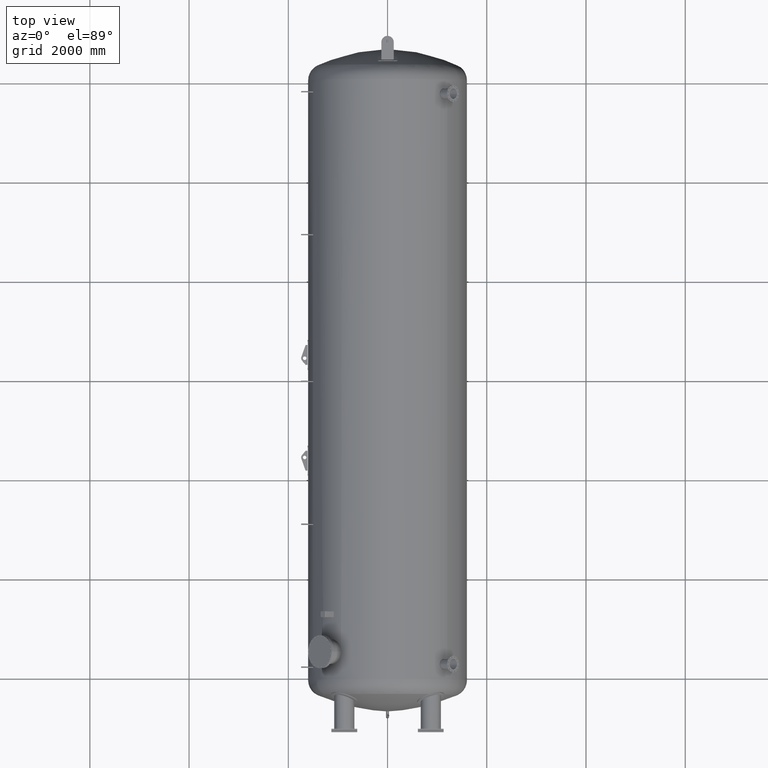
[diagram: clean part render]
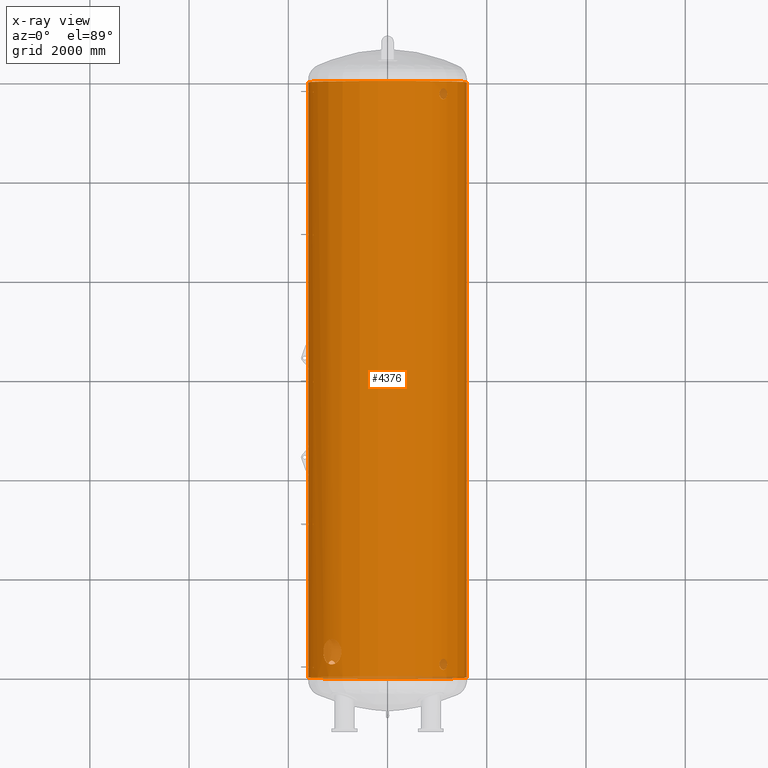
[diagram: x-ray — body ghosted, one internal face saturated and labeled with its STEP entity id]
A machine part, top view, then the same camera in x-ray: the body is ghosted and one INTERNAL B-rep face — a face not visible from any outside direction — is saturated and labeled: STEP entity #4376.
In plain terms, the highlighted cylindrical surface (bore or boss wall) has radius 1592 mm, axis along (0, 1, 0).
Its self-contained STEP definition (entity closure, byte-faithful):
#169=B_SPLINE_CURVE_WITH_KNOTS('',3,(#7213,#7214,#7215,#7216,#7217,#7218,
#7219,#7220,#7221,#7222,#7223,#7224,#7225,#7226,#7227,#7228,#7229,#7230,
#7231,#7232,#7233,#7234,#7235,#7236,#7237,#7238),.UNSPECIFIED.,.F.,.F.,
(4,2,2,2,2,2,2,2,2,2,2,2,4),(0.,0.506646192524776,1.01329238504955,1.51993857748729,
2.02658476992503,2.53323096236277,3.03987715480051,3.54652334732529,4.05316953985007,
4.55981573237485,5.06646192489962,5.57310811733736,6.0797543097751),
 .UNSPECIFIED.);
#170=B_SPLINE_CURVE_WITH_KNOTS('',3,(#7239,#7240,#7241,#7242,#7243,#7244,
#7245,#7246,#7247,#7248),.UNSPECIFIED.,.F.,.F.,(4,2,2,2,4),(6.0797543097751,
6.58640050221284,7.09304669465058,7.59969288717536,8.10633907970013),
 .UNSPECIFIED.);
#173=B_SPLINE_CURVE_WITH_KNOTS('',3,(#7292,#7293,#7294,#7295,#7296,#7297,
#7298,#7299,#7300,#7301,#7302,#7303,#7304,#7305,#7306,#7307,#7308,#7309,
#7310,#7311,#7312,#7313,#7314,#7315,#7316,#7317),.UNSPECIFIED.,.F.,.F.,
(4,2,2,2,2,2,2,2,2,2,2,2,4),(0.,0.506646192524776,1.01329238504955,1.51993857748729,
2.02658476992503,2.53323096236277,3.03987715480051,3.54652334732529,4.05316953985007,
4.55981573237485,5.06646192489962,5.57310811733736,6.0797543097751),
 .UNSPECIFIED.);
#174=B_SPLINE_CURVE_WITH_KNOTS('',3,(#7318,#7319,#7320,#7321,#7322,#7323,
#7324,#7325,#7326,#7327),.UNSPECIFIED.,.F.,.F.,(4,2,2,2,4),(6.0797543097751,
6.58640050221284,7.09304669465058,7.59969288717536,8.10633907970013),
 .UNSPECIFIED.);
#177=B_SPLINE_CURVE_WITH_KNOTS('',3,(#7371,#7372,#7373,#7374,#7375,#7376,
#7377,#7378,#7379,#7380,#7381,#7382,#7383,#7384,#7385,#7386,#7387,#7388,
#7389,#7390,#7391,#7392,#7393,#7394,#7395,#7396),.UNSPECIFIED.,.F.,.F.,
(4,2,2,2,2,2,2,2,2,2,2,2,4),(0.,0.506646192524776,1.01329238504955,1.51993857748729,
2.02658476992503,2.53323096236277,3.03987715480051,3.54652334732529,4.05316953985007,
4.55981573237485,5.06646192489962,5.57310811733736,6.0797543097751),
 .UNSPECIFIED.);
#178=B_SPLINE_CURVE_WITH_KNOTS('',3,(#7397,#7398,#7399,#7400,#7401,#7402,
#7403,#7404,#7405,#7406),.UNSPECIFIED.,.F.,.F.,(4,2,2,2,4),(6.0797543097751,
6.58640050221284,7.09304669465058,7.59969288717536,8.10633907970013),
 .UNSPECIFIED.);
#181=B_SPLINE_CURVE_WITH_KNOTS('',3,(#7450,#7451,#7452,#7453,#7454,#7455,
#7456,#7457,#7458,#7459,#7460,#7461,#7462,#7463,#7464,#7465,#7466,#7467,
#7468,#7469,#7470,#7471,#7472,#7473,#7474,#7475),.UNSPECIFIED.,.F.,.F.,
(4,2,2,2,2,2,2,2,2,2,2,2,4),(0.,0.506646192524776,1.01329238504955,1.51993857748729,
2.02658476992503,2.53323096236277,3.03987715480051,3.54652334732529,4.05316953985007,
4.55981573237485,5.06646192489962,5.57310811733736,6.0797543097751),
 .UNSPECIFIED.);
#182=B_SPLINE_CURVE_WITH_KNOTS('',3,(#7476,#7477,#7478,#7479,#7480,#7481,
#7482,#7483,#7484,#7485),.UNSPECIFIED.,.F.,.F.,(4,2,2,2,4),(6.0797543097751,
6.58640050221284,7.09304669465058,7.59969288717536,8.10633907970013),
 .UNSPECIFIED.);
#185=B_SPLINE_CURVE_WITH_KNOTS('',3,(#7529,#7530,#7531,#7532,#7533,#7534,
#7535,#7536,#7537,#7538,#7539,#7540,#7541,#7542,#7543,#7544,#7545,#7546,
#7547,#7548,#7549,#7550,#7551,#7552,#7553,#7554),.UNSPECIFIED.,.F.,.F.,
(4,2,2,2,2,2,2,2,2,2,2,2,4),(0.,0.506646192524776,1.01329238504955,1.51993857748729,
2.02658476992503,2.53323096236277,3.03987715480051,3.54652334732529,4.05316953985007,
4.55981573237485,5.06646192489962,5.57310811733736,6.0797543097751),
 .UNSPECIFIED.);
#186=B_SPLINE_CURVE_WITH_KNOTS('',3,(#7555,#7556,#7557,#7558,#7559,#7560,
#7561,#7562,#7563,#7564),.UNSPECIFIED.,.F.,.F.,(4,2,2,2,4),(6.0797543097751,
6.58640050221284,7.09304669465058,7.59969288717536,8.10633907970013),
 .UNSPECIFIED.);
#189=B_SPLINE_CURVE_WITH_KNOTS('',3,(#7624,#7625,#7626,#7627,#7628,#7629,
#7630,#7631,#7632,#7633,#7634,#7635,#7636,#7637,#7638,#7639,#7640,#7641,
#7642,#7643,#7644,#7645,#7646,#7647,#7648,#7649,#7650,#7651,#7652,#7653,
#7654,#7655,#7656,#7657,#7658,#7659,#7660,#7661,#7662,#7663,#7664,#7665,
#7666,#7667,#7668,#7669,#7670,#7671,#7672,#7673),.UNSPECIFIED.,.F.,.F.,
(4,2,2,2,2,2,2,2,2,2,2,2,2,2,2,2,2,2,2,2,2,2,2,2,4),(0.,2.06400194110335,
4.12800388220669,6.19200582331004,8.25600776441339,10.3200081380386,12.3840085116637,
14.4480088852889,16.5120092589141,18.5760096325392,20.6400100061644,22.7040103797896,
24.7680107534147,26.8320126945181,28.8960146356214,30.9600165767248,33.0240185178281,
35.0880204589315,37.1520224000348,39.2160243411382,41.2800262822415,43.3440266558667,
45.4080270294919,47.472027403117,49.5360277767422),.UNSPECIFIED.);
#190=B_SPLINE_CURVE_WITH_KNOTS('',3,(#7674,#7675,#7676,#7677,#7678,#7679,
#7680,#7681,#7682,#7683,#7684,#7685,#7686,#7687,#7688,#7689,#7690,#7691),
 .UNSPECIFIED.,.F.,.F.,(4,2,2,2,2,2,2,2,4),(49.5360277767422,51.6000281503674,
53.6640285239925,55.7280288976177,57.7920292712429,59.8560312123462,61.9200331534496,
63.9840350945529,66.0480370356563),.UNSPECIFIED.);
#193=B_SPLINE_CURVE_WITH_KNOTS('',3,(#7767,#7768,#7769,#7770,#7771,#7772,
#7773,#7774,#7775,#7776,#7777,#7778,#7779,#7780,#7781,#7782,#7783,#7784,
#7785,#7786,#7787,#7788,#7789,#7790,#7791,#7792,#7793,#7794,#7795,#7796,
#7797,#7798,#7799,#7800,#7801,#7802,#7803,#7804,#7805,#7806,#7807,#7808,
#7809,#7810,#7811,#7812,#7813,#7814,#7815,#7816),.UNSPECIFIED.,.F.,.F.,
(4,2,2,2,2,2,2,2,2,2,2,2,2,2,2,2,2,2,2,2,2,2,2,2,4),(0.,2.06400194110338,
4.12800388220676,6.19200582331013,8.25600776441351,10.3200081380387,12.3840085116638,
14.448008885289,16.5120092589142,18.5760096325393,20.6400100061645,22.7040103797897,
24.7680107534148,26.8320126945182,28.8960146356216,30.9600165767249,33.0240185178283,
35.0880204589317,37.1520224000351,39.2160243411385,41.2800262822418,43.344026655867,
45.4080270294922,47.4720274031173,49.5360277767425),.UNSPECIFIED.);
#194=B_SPLINE_CURVE_WITH_KNOTS('',3,(#7817,#7818,#7819,#7820,#7821,#7822,
#7823,#7824,#7825,#7826,#7827,#7828,#7829,#7830,#7831,#7832,#7833,#7834),
 .UNSPECIFIED.,.F.,.F.,(4,2,2,2,2,2,2,2,4),(49.5360277767425,51.6000281503676,
53.6640285239928,55.728028897618,57.7920292712431,59.8560312123465,61.9200331534499,
63.9840350945533,66.0480370356566),.UNSPECIFIED.);
#197=B_SPLINE_CURVE_WITH_KNOTS('',3,(#7910,#7911,#7912,#7913,#7914,#7915,
#7916,#7917,#7918,#7919,#7920,#7921,#7922,#7923,#7924,#7925,#7926,#7927,
#7928,#7929,#7930,#7931,#7932,#7933,#7934,#7935,#7936,#7937,#7938,#7939,
#7940,#7941,#7942,#7943,#7944,#7945,#7946,#7947,#7948,#7949,#7950,#7951,
#7952,#7953,#7954,#7955,#7956,#7957,#7958,#7959),.UNSPECIFIED.,.F.,.F.,
(4,2,2,2,2,2,2,2,2,2,2,2,2,2,2,2,2,2,2,2,2,2,2,2,4),(0.,2.06400194110335,
4.12800388220669,6.19200582331004,8.25600776441339,10.3200081380386,12.3840085116637,
14.4480088852889,16.5120092589141,18.5760096325392,20.6400100061644,22.7040103797896,
24.7680107534147,26.8320126945181,28.8960146356214,30.9600165767248,33.0240185178281,
35.0880204589315,37.1520224000348,39.2160243411382,41.2800262822415,43.3440266558667,
45.4080270294919,47.472027403117,49.5360277767422),.UNSPECIFIED.);
#198=B_SPLINE_CURVE_WITH_KNOTS('',3,(#7960,#7961,#7962,#7963,#7964,#7965,
#7966,#7967,#7968,#7969,#7970,#7971,#7972,#7973,#7974,#7975,#7976,#7977),
 .UNSPECIFIED.,.F.,.F.,(4,2,2,2,2,2,2,2,4),(49.5360277767422,51.6000281503674,
53.6640285239925,55.7280288976177,57.7920292712429,59.8560312123462,61.9200331534496,
63.9840350945529,66.0480370356563),.UNSPECIFIED.);
#201=B_SPLINE_CURVE_WITH_KNOTS('',3,(#8053,#8054,#8055,#8056,#8057,#8058,
#8059,#8060,#8061,#8062,#8063,#8064,#8065,#8066,#8067,#8068,#8069,#8070,
#8071,#8072,#8073,#8074,#8075,#8076,#8077,#8078,#8079,#8080,#8081,#8082,
#8083,#8084,#8085,#8086,#8087,#8088,#8089,#8090,#8091,#8092,#8093,#8094,
#8095,#8096,#8097,#8098,#8099,#8100,#8101,#8102),.UNSPECIFIED.,.F.,.F.,
(4,2,2,2,2,2,2,2,2,2,2,2,2,2,2,2,2,2,2,2,2,2,2,2,4),(0.,2.06400194110338,
4.12800388220676,6.19200582331013,8.25600776441351,10.3200081380387,12.3840085116638,
14.448008885289,16.5120092589142,18.5760096325393,20.6400100061645,22.7040103797897,
24.7680107534148,26.8320126945182,28.8960146356216,30.9600165767249,33.0240185178283,
35.0880204589317,37.1520224000351,39.2160243411385,41.2800262822418,43.344026655867,
45.4080270294922,47.4720274031173,49.5360277767425),.UNSPECIFIED.);
#202=B_SPLINE_CURVE_WITH_KNOTS('',3,(#8103,#8104,#8105,#8106,#8107,#8108,
#8109,#8110,#8111,#8112,#8113,#8114,#8115,#8116,#8117,#8118,#8119,#8120),
 .UNSPECIFIED.,.F.,.F.,(4,2,2,2,2,2,2,2,4),(49.5360277767425,51.6000281503676,
53.6640285239928,55.728028897618,57.7920292712431,59.8560312123465,61.9200331534499,
63.9840350945533,66.0480370356566),.UNSPECIFIED.);
#205=B_SPLINE_CURVE_WITH_KNOTS('',3,(#8228,#8229,#8230,#8231,#8232,#8233,
#8234,#8235,#8236,#8237,#8238,#8239,#8240,#8241,#8242,#8243,#8244,#8245,
#8246,#8247,#8248,#8249,#8250,#8251,#8252,#8253,#8254,#8255,#8256,#8257,
#8258,#8259,#8260,#8261,#8262,#8263,#8264,#8265,#8266,#8267,#8268,#8269,
#8270,#8271,#8272,#8273,#8274,#8275,#8276,#8277,#8278,#8279,#8280,#8281,
#8282,#8283,#8284,#8285,#8286,#8287,#8288,#8289,#8290,#8291,#8292,#8293,
#8294,#8295,#8296,#8297,#8298,#8299,#8300,#8301,#8302,#8303,#8304,#8305,
#8306,#8307,#8308,#8309,#8310,#8311,#8312,#8313,#8314,#8315,#8316,#8317,
#8318,#8319,#8320,#8321,#8322,#8323,#8324,#8325),.UNSPECIFIED.,.F.,.F.,
(4,2,2,2,2,2,2,2,2,2,2,2,2,2,2,2,2,2,2,2,2,2,2,2,2,2,2,2,2,2,2,2,2,2,2,
2,2,2,2,2,2,2,2,2,2,2,2,2,4),(0.,2.39639255874289,4.79278511748579,7.18917767622868,
9.58557023497158,11.9819627937145,14.3783553524574,16.7747479112003,19.1711404699432,
21.567479396911,23.9638183238789,26.3601572508467,28.7564961778146,31.1528351047824,
33.5491740317503,35.9455129587181,38.341851885686,40.7381908126538,43.1345297396217,
45.5308686665895,47.9272075935574,50.3235465205252,52.7198854474931,55.1162243744609,
57.5125633014288,59.9089558601717,62.3053484189146,64.7017409776575,67.0981335364004,
69.4945260951432,71.8909186538861,74.287311212629,76.6837037713719,79.0800963301148,
81.4764888888577,83.8728814476006,86.2692740063435,88.6656665650864,91.0620591238293,
93.4584516825722,95.8548442413151,98.2511831682829,100.647522095251,103.043861022219,
105.440199949186,107.836538876154,110.232877803122,112.62921673009,115.025555657058),
 .UNSPECIFIED.);
#206=B_SPLINE_CURVE_WITH_KNOTS('',3,(#8326,#8327,#8328,#8329,#8330,#8331,
#8332,#8333,#8334,#8335,#8336,#8337,#8338,#8339,#8340,#8341,#8342,#8343,
#8344,#8345,#8346,#8347,#8348,#8349,#8350,#8351,#8352,#8353,#8354,#8355,
#8356,#8357,#8358,#8359),.UNSPECIFIED.,.F.,.F.,(4,2,2,2,2,2,2,2,2,2,2,2,
2,2,2,2,4),(115.025555657058,117.421894584026,119.818233510994,122.214572437961,
124.610911364929,127.007250291897,129.403589218865,131.799928145833,134.196267072801,
136.592659631544,138.989052190286,141.385444749029,143.781837307772,146.178229866515,
148.574622425258,150.971014984001,153.367407542744),.UNSPECIFIED.);
#401=FACE_BOUND('',#865,.T.);
#402=FACE_BOUND('',#866,.T.);
#403=FACE_BOUND('',#867,.T.);
#404=FACE_BOUND('',#868,.T.);
#405=FACE_BOUND('',#869,.T.);
#406=FACE_BOUND('',#870,.T.);
#407=FACE_BOUND('',#871,.T.);
#408=FACE_BOUND('',#872,.T.);
#409=FACE_BOUND('',#873,.T.);
#410=FACE_BOUND('',#874,.T.);
#622=FACE_OUTER_BOUND('',#864,.T.);
#864=EDGE_LOOP('',(#3119,#3120,#3121,#3122,#3123,#3124));
#865=EDGE_LOOP('',(#3125,#3126));
#866=EDGE_LOOP('',(#3127,#3128));
#867=EDGE_LOOP('',(#3129,#3130));
#868=EDGE_LOOP('',(#3131,#3132));
#869=EDGE_LOOP('',(#3133,#3134));
#870=EDGE_LOOP('',(#3135,#3136));
#871=EDGE_LOOP('',(#3137,#3138));
#872=EDGE_LOOP('',(#3139,#3140));
#873=EDGE_LOOP('',(#3141,#3142));
#874=EDGE_LOOP('',(#3143,#3144));
#1265=LINE('',#8432,#1490);
#1490=VECTOR('',#5834,1592.);
#1735=CIRCLE('',#5155,1592.);
#1736=CIRCLE('',#5156,1592.);
#1737=CIRCLE('',#5157,1592.);
#1738=CIRCLE('',#5158,1592.);
#2024=VERTEX_POINT('',#7210);
#2025=VERTEX_POINT('',#7212);
#2028=VERTEX_POINT('',#7289);
#2029=VERTEX_POINT('',#7291);
#2032=VERTEX_POINT('',#7368);
#2033=VERTEX_POINT('',#7370);
#2036=VERTEX_POINT('',#7447);
#2037=VERTEX_POINT('',#7449);
#2040=VERTEX_POINT('',#7526);
#2041=VERTEX_POINT('',#7528);
#2044=VERTEX_POINT('',#7621);
#2045=VERTEX_POINT('',#7623);
#2048=VERTEX_POINT('',#7764);
#2049=VERTEX_POINT('',#7766);
#2052=VERTEX_POINT('',#7907);
#2053=VERTEX_POINT('',#7909);
#2056=VERTEX_POINT('',#8050);
#2057=VERTEX_POINT('',#8052);
#2060=VERTEX_POINT('',#8225);
#2061=VERTEX_POINT('',#8227);
#2062=VERTEX_POINT('',#8428);
#2063=VERTEX_POINT('',#8429);
#2064=VERTEX_POINT('',#8431);
#2065=VERTEX_POINT('',#8433);
#2437=EDGE_CURVE('',#2025,#2024,#169,.T.);
#2438=EDGE_CURVE('',#2024,#2025,#170,.T.);
#2442=EDGE_CURVE('',#2029,#2028,#173,.T.);
#2443=EDGE_CURVE('',#2028,#2029,#174,.T.);
#2447=EDGE_CURVE('',#2033,#2032,#177,.T.);
#2448=EDGE_CURVE('',#2032,#2033,#178,.T.);
#2452=EDGE_CURVE('',#2037,#2036,#181,.T.);
#2453=EDGE_CURVE('',#2036,#2037,#182,.T.);
#2457=EDGE_CURVE('',#2041,#2040,#185,.T.);
#2458=EDGE_CURVE('',#2040,#2041,#186,.T.);
#2462=EDGE_CURVE('',#2045,#2044,#189,.T.);
#2463=EDGE_CURVE('',#2044,#2045,#190,.T.);
#2467=EDGE_CURVE('',#2049,#2048,#193,.T.);
#2468=EDGE_CURVE('',#2048,#2049,#194,.T.);
#2472=EDGE_CURVE('',#2053,#2052,#197,.T.);
#2473=EDGE_CURVE('',#2052,#2053,#198,.T.);
#2477=EDGE_CURVE('',#2057,#2056,#201,.T.);
#2478=EDGE_CURVE('',#2056,#2057,#202,.T.);
#2482=EDGE_CURVE('',#2061,#2060,#205,.T.);
#2483=EDGE_CURVE('',#2060,#2061,#206,.T.);
#2485=EDGE_CURVE('',#2062,#2063,#1735,.T.);
#2486=EDGE_CURVE('',#2063,#2064,#1265,.T.);
#2487=EDGE_CURVE('',#2065,#2064,#1736,.T.);
#2488=EDGE_CURVE('',#2064,#2065,#1737,.T.);
#2489=EDGE_CURVE('',#2063,#2062,#1738,.T.);
#3119=ORIENTED_EDGE('',*,*,#2485,.T.);
#3120=ORIENTED_EDGE('',*,*,#2486,.T.);
#3121=ORIENTED_EDGE('',*,*,#2487,.F.);
#3122=ORIENTED_EDGE('',*,*,#2488,.F.);
#3123=ORIENTED_EDGE('',*,*,#2486,.F.);
#3124=ORIENTED_EDGE('',*,*,#2489,.T.);
#3125=ORIENTED_EDGE('',*,*,#2437,.T.);
#3126=ORIENTED_EDGE('',*,*,#2438,.T.);
#3127=ORIENTED_EDGE('',*,*,#2442,.T.);
#3128=ORIENTED_EDGE('',*,*,#2443,.T.);
#3129=ORIENTED_EDGE('',*,*,#2447,.T.);
#3130=ORIENTED_EDGE('',*,*,#2448,.T.);
#3131=ORIENTED_EDGE('',*,*,#2452,.T.);
#3132=ORIENTED_EDGE('',*,*,#2453,.T.);
#3133=ORIENTED_EDGE('',*,*,#2457,.T.);
#3134=ORIENTED_EDGE('',*,*,#2458,.T.);
#3135=ORIENTED_EDGE('',*,*,#2462,.T.);
#3136=ORIENTED_EDGE('',*,*,#2463,.T.);
#3137=ORIENTED_EDGE('',*,*,#2467,.T.);
#3138=ORIENTED_EDGE('',*,*,#2468,.T.);
#3139=ORIENTED_EDGE('',*,*,#2472,.T.);
#3140=ORIENTED_EDGE('',*,*,#2473,.T.);
#3141=ORIENTED_EDGE('',*,*,#2477,.T.);
#3142=ORIENTED_EDGE('',*,*,#2478,.T.);
#3143=ORIENTED_EDGE('',*,*,#2482,.T.);
#3144=ORIENTED_EDGE('',*,*,#2483,.T.);
#4155=CYLINDRICAL_SURFACE('',#5154,1592.);
#4376=ADVANCED_FACE('',(#622,#401,#402,#403,#404,#405,#406,#407,#408,#409,
#410),#4155,.F.);
#5154=AXIS2_PLACEMENT_3D('',#8427,#5830,#5831);
#5155=AXIS2_PLACEMENT_3D('',#8430,#5832,#5833);
#5156=AXIS2_PLACEMENT_3D('',#8434,#5835,#5836);
#5157=AXIS2_PLACEMENT_3D('',#8435,#5837,#5838);
#5158=AXIS2_PLACEMENT_3D('',#8436,#5839,#5840);
#5830=DIRECTION('center_axis',(0.,1.,0.));
#5831=DIRECTION('ref_axis',(-1.,0.,0.));
#5832=DIRECTION('center_axis',(0.,1.,0.));
#5833=DIRECTION('ref_axis',(1.,0.,0.));
#5834=DIRECTION('',(0.,-1.,0.));
#5835=DIRECTION('center_axis',(0.,1.,0.));
#5836=DIRECTION('ref_axis',(1.,0.,0.));
#5837=DIRECTION('center_axis',(0.,1.,0.));
#5838=DIRECTION('ref_axis',(1.,0.,0.));
#5839=DIRECTION('center_axis',(0.,1.,0.));
#5840=DIRECTION('ref_axis',(1.,0.,0.));
#7210=CARTESIAN_POINT('',(-1495.99065229117,8933.45,544.496068174465));
#7212=CARTESIAN_POINT('',(-1500.53743258516,8920.,531.837769823423));
#7213=CARTESIAN_POINT('Ctrl Pts',(-1500.53743258516,8920.,531.837769823423));
#7214=CARTESIAN_POINT('Ctrl Pts',(-1500.53743258516,8918.31117935825,531.837769823423));
#7215=CARTESIAN_POINT('Ctrl Pts',(-1500.42478141197,8916.50979643767,532.155941785707));
#7216=CARTESIAN_POINT('Ctrl Pts',(-1499.96538433643,8913.19599693097,533.449451068663));
#7217=CARTESIAN_POINT('Ctrl Pts',(-1499.61849423164,8911.6835796662,534.424735431897));
#7218=CARTESIAN_POINT('Ctrl Pts',(-1498.81504430862,8909.29524792009,536.673913132699));
#7219=CARTESIAN_POINT('Ctrl Pts',(-1498.30490570907,8908.26013699761,538.097718703243));
#7220=CARTESIAN_POINT('Ctrl Pts',(-1497.18158731658,8906.88751281508,541.215336022276));
#7221=CARTESIAN_POINT('Ctrl Pts',(-1496.56826296901,8906.55,542.909095879854));
#7222=CARTESIAN_POINT('Ctrl Pts',(-1495.41304161332,8906.55,546.083040469075));
#7223=CARTESIAN_POINT('Ctrl Pts',(-1494.79414747137,8906.88751281508,547.774773087286));
#7224=CARTESIAN_POINT('Ctrl Pts',(-1493.65069349937,8908.26013699761,550.885061654728));
#7225=CARTESIAN_POINT('Ctrl Pts',(-1493.12627775944,8909.29524792009,552.303670771144));
#7226=CARTESIAN_POINT('Ctrl Pts',(-1492.29601255023,8911.6835796662,554.543088505949));
#7227=CARTESIAN_POINT('Ctrl Pts',(-1491.93484508276,8913.19599693097,555.513176334144));
#7228=CARTESIAN_POINT('Ctrl Pts',(-1491.45531191957,8916.50979643767,556.799356680562));
#7229=CARTESIAN_POINT('Ctrl Pts',(-1491.33709072969,8918.31117935825,557.115501322564));
#7230=CARTESIAN_POINT('Ctrl Pts',(-1491.33709072969,8921.68882064175,557.115501322564));
#7231=CARTESIAN_POINT('Ctrl Pts',(-1491.45531191957,8923.49020356233,556.799356680562));
#7232=CARTESIAN_POINT('Ctrl Pts',(-1491.93484508276,8926.80400306903,555.513176334144));
#7233=CARTESIAN_POINT('Ctrl Pts',(-1492.29601255023,8928.3164203338,554.543088505949));
#7234=CARTESIAN_POINT('Ctrl Pts',(-1493.12627775944,8930.70475207991,552.303670771144));
#7235=CARTESIAN_POINT('Ctrl Pts',(-1493.65069349937,8931.73986300239,550.885061654728));
#7236=CARTESIAN_POINT('Ctrl Pts',(-1494.79414747137,8933.11248718492,547.774773087286));
#7237=CARTESIAN_POINT('Ctrl Pts',(-1495.41304161332,8933.45,546.083040469075));
#7238=CARTESIAN_POINT('Ctrl Pts',(-1495.99065229117,8933.45,544.496068174465));
#7239=CARTESIAN_POINT('Ctrl Pts',(-1495.99065229117,8933.45,544.496068174465));
#7240=CARTESIAN_POINT('Ctrl Pts',(-1496.56826296901,8933.45,542.909095879855));
#7241=CARTESIAN_POINT('Ctrl Pts',(-1497.18158731658,8933.11248718492,541.215336022276));
#7242=CARTESIAN_POINT('Ctrl Pts',(-1498.30490570907,8931.73986300239,538.097718703243));
#7243=CARTESIAN_POINT('Ctrl Pts',(-1498.81504430862,8930.70475207991,536.673913132699));
#7244=CARTESIAN_POINT('Ctrl Pts',(-1499.61849423164,8928.3164203338,534.424735431897));
#7245=CARTESIAN_POINT('Ctrl Pts',(-1499.96538433643,8926.80400306903,533.449451068663));
#7246=CARTESIAN_POINT('Ctrl Pts',(-1500.42478141197,8923.49020356233,532.155941785707));
#7247=CARTESIAN_POINT('Ctrl Pts',(-1500.53743258516,8921.68882064175,531.837769823423));
#7248=CARTESIAN_POINT('Ctrl Pts',(-1500.53743258516,8920.,531.837769823423));
#7289=CARTESIAN_POINT('',(-1495.99065229117,5973.45,544.496068174465));
#7291=CARTESIAN_POINT('',(-1500.53743258516,5960.,531.837769823423));
#7292=CARTESIAN_POINT('Ctrl Pts',(-1500.53743258516,5960.,531.837769823423));
#7293=CARTESIAN_POINT('Ctrl Pts',(-1500.53743258516,5958.31117935825,531.837769823423));
#7294=CARTESIAN_POINT('Ctrl Pts',(-1500.42478141197,5956.50979643767,532.155941785707));
#7295=CARTESIAN_POINT('Ctrl Pts',(-1499.96538433643,5953.19599693097,533.449451068663));
#7296=CARTESIAN_POINT('Ctrl Pts',(-1499.61849423164,5951.6835796662,534.424735431897));
#7297=CARTESIAN_POINT('Ctrl Pts',(-1498.81504430862,5949.29524792009,536.673913132699));
#7298=CARTESIAN_POINT('Ctrl Pts',(-1498.30490570907,5948.26013699761,538.097718703243));
#7299=CARTESIAN_POINT('Ctrl Pts',(-1497.18158731658,5946.88751281508,541.215336022276));
#7300=CARTESIAN_POINT('Ctrl Pts',(-1496.56826296901,5946.55,542.909095879854));
#7301=CARTESIAN_POINT('Ctrl Pts',(-1495.41304161332,5946.55,546.083040469075));
#7302=CARTESIAN_POINT('Ctrl Pts',(-1494.79414747137,5946.88751281508,547.774773087286));
#7303=CARTESIAN_POINT('Ctrl Pts',(-1493.65069349937,5948.26013699761,550.885061654728));
#7304=CARTESIAN_POINT('Ctrl Pts',(-1493.12627775944,5949.29524792009,552.303670771144));
#7305=CARTESIAN_POINT('Ctrl Pts',(-1492.29601255023,5951.6835796662,554.543088505949));
#7306=CARTESIAN_POINT('Ctrl Pts',(-1491.93484508276,5953.19599693097,555.513176334144));
#7307=CARTESIAN_POINT('Ctrl Pts',(-1491.45531191957,5956.50979643767,556.799356680562));
#7308=CARTESIAN_POINT('Ctrl Pts',(-1491.33709072969,5958.31117935825,557.115501322564));
#7309=CARTESIAN_POINT('Ctrl Pts',(-1491.33709072969,5961.68882064175,557.115501322564));
#7310=CARTESIAN_POINT('Ctrl Pts',(-1491.45531191957,5963.49020356233,556.799356680562));
#7311=CARTESIAN_POINT('Ctrl Pts',(-1491.93484508276,5966.80400306903,555.513176334144));
#7312=CARTESIAN_POINT('Ctrl Pts',(-1492.29601255023,5968.3164203338,554.543088505949));
#7313=CARTESIAN_POINT('Ctrl Pts',(-1493.12627775944,5970.70475207991,552.303670771144));
#7314=CARTESIAN_POINT('Ctrl Pts',(-1493.65069349937,5971.73986300239,550.885061654728));
#7315=CARTESIAN_POINT('Ctrl Pts',(-1494.79414747137,5973.11248718492,547.774773087286));
#7316=CARTESIAN_POINT('Ctrl Pts',(-1495.41304161332,5973.45,546.083040469075));
#7317=CARTESIAN_POINT('Ctrl Pts',(-1495.99065229117,5973.45,544.496068174465));
#7318=CARTESIAN_POINT('Ctrl Pts',(-1495.99065229117,5973.45,544.496068174465));
#7319=CARTESIAN_POINT('Ctrl Pts',(-1496.56826296901,5973.45,542.909095879854));
#7320=CARTESIAN_POINT('Ctrl Pts',(-1497.18158731658,5973.11248718492,541.215336022276));
#7321=CARTESIAN_POINT('Ctrl Pts',(-1498.30490570907,5971.73986300239,538.097718703243));
#7322=CARTESIAN_POINT('Ctrl Pts',(-1498.81504430862,5970.70475207991,536.673913132699));
#7323=CARTESIAN_POINT('Ctrl Pts',(-1499.61849423164,5968.3164203338,534.424735431897));
#7324=CARTESIAN_POINT('Ctrl Pts',(-1499.96538433643,5966.80400306903,533.449451068663));
#7325=CARTESIAN_POINT('Ctrl Pts',(-1500.42478141197,5963.49020356233,532.155941785707));
#7326=CARTESIAN_POINT('Ctrl Pts',(-1500.53743258515,5961.68882064175,531.837769823424));
#7327=CARTESIAN_POINT('Ctrl Pts',(-1500.53743258515,5960.,531.837769823424));
#7368=CARTESIAN_POINT('',(-1495.99065229117,3093.45,544.496068174465));
#7370=CARTESIAN_POINT('',(-1500.53743258516,3080.,531.837769823423));
#7371=CARTESIAN_POINT('Ctrl Pts',(-1500.53743258516,3080.,531.837769823423));
#7372=CARTESIAN_POINT('Ctrl Pts',(-1500.53743258516,3078.31117935825,531.837769823423));
#7373=CARTESIAN_POINT('Ctrl Pts',(-1500.42478141197,3076.50979643767,532.155941785707));
#7374=CARTESIAN_POINT('Ctrl Pts',(-1499.96538433643,3073.19599693097,533.449451068663));
#7375=CARTESIAN_POINT('Ctrl Pts',(-1499.61849423164,3071.6835796662,534.424735431897));
#7376=CARTESIAN_POINT('Ctrl Pts',(-1498.81504430862,3069.29524792009,536.673913132699));
#7377=CARTESIAN_POINT('Ctrl Pts',(-1498.30490570907,3068.26013699761,538.097718703243));
#7378=CARTESIAN_POINT('Ctrl Pts',(-1497.18158731658,3066.88751281508,541.215336022276));
#7379=CARTESIAN_POINT('Ctrl Pts',(-1496.56826296901,3066.55,542.909095879854));
#7380=CARTESIAN_POINT('Ctrl Pts',(-1495.41304161332,3066.55,546.083040469075));
#7381=CARTESIAN_POINT('Ctrl Pts',(-1494.79414747137,3066.88751281508,547.774773087285));
#7382=CARTESIAN_POINT('Ctrl Pts',(-1493.65069349937,3068.26013699761,550.885061654728));
#7383=CARTESIAN_POINT('Ctrl Pts',(-1493.12627775944,3069.29524792009,552.303670771144));
#7384=CARTESIAN_POINT('Ctrl Pts',(-1492.29601255023,3071.6835796662,554.543088505949));
#7385=CARTESIAN_POINT('Ctrl Pts',(-1491.93484508276,3073.19599693097,555.513176334144));
#7386=CARTESIAN_POINT('Ctrl Pts',(-1491.45531191957,3076.50979643767,556.799356680562));
#7387=CARTESIAN_POINT('Ctrl Pts',(-1491.33709072969,3078.31117935825,557.115501322564));
#7388=CARTESIAN_POINT('Ctrl Pts',(-1491.33709072969,3081.68882064175,557.115501322564));
#7389=CARTESIAN_POINT('Ctrl Pts',(-1491.45531191957,3083.49020356233,556.799356680562));
#7390=CARTESIAN_POINT('Ctrl Pts',(-1491.93484508276,3086.80400306903,555.513176334144));
#7391=CARTESIAN_POINT('Ctrl Pts',(-1492.29601255023,3088.3164203338,554.543088505949));
#7392=CARTESIAN_POINT('Ctrl Pts',(-1493.12627775944,3090.70475207991,552.303670771144));
#7393=CARTESIAN_POINT('Ctrl Pts',(-1493.65069349937,3091.73986300239,550.885061654728));
#7394=CARTESIAN_POINT('Ctrl Pts',(-1494.79414747137,3093.11248718492,547.774773087285));
#7395=CARTESIAN_POINT('Ctrl Pts',(-1495.41304161332,3093.45,546.083040469075));
#7396=CARTESIAN_POINT('Ctrl Pts',(-1495.99065229117,3093.45,544.496068174465));
#7397=CARTESIAN_POINT('Ctrl Pts',(-1495.99065229117,3093.45,544.496068174465));
#7398=CARTESIAN_POINT('Ctrl Pts',(-1496.56826296901,3093.45,542.909095879854));
#7399=CARTESIAN_POINT('Ctrl Pts',(-1497.18158731658,3093.11248718492,541.215336022276));
#7400=CARTESIAN_POINT('Ctrl Pts',(-1498.30490570907,3091.73986300239,538.097718703243));
#7401=CARTESIAN_POINT('Ctrl Pts',(-1498.81504430862,3090.70475207991,536.673913132699));
#7402=CARTESIAN_POINT('Ctrl Pts',(-1499.61849423164,3088.3164203338,534.424735431897));
#7403=CARTESIAN_POINT('Ctrl Pts',(-1499.96538433643,3086.80400306903,533.449451068663));
#7404=CARTESIAN_POINT('Ctrl Pts',(-1500.42478141197,3083.49020356233,532.155941785707));
#7405=CARTESIAN_POINT('Ctrl Pts',(-1500.53743258516,3081.68882064175,531.837769823423));
#7406=CARTESIAN_POINT('Ctrl Pts',(-1500.53743258516,3080.,531.837769823423));
#7447=CARTESIAN_POINT('',(-1495.99065229117,11813.45,544.496068174465));
#7449=CARTESIAN_POINT('',(-1500.53743258515,11800.,531.837769823424));
#7450=CARTESIAN_POINT('Ctrl Pts',(-1500.53743258515,11800.,531.837769823424));
#7451=CARTESIAN_POINT('Ctrl Pts',(-1500.53743258515,11798.3111793583,531.837769823424));
#7452=CARTESIAN_POINT('Ctrl Pts',(-1500.42478141197,11796.5097964377,532.155941785706));
#7453=CARTESIAN_POINT('Ctrl Pts',(-1499.96538433643,11793.195996931,533.449451068662));
#7454=CARTESIAN_POINT('Ctrl Pts',(-1499.61849423164,11791.6835796662,534.424735431897));
#7455=CARTESIAN_POINT('Ctrl Pts',(-1498.81504430862,11789.2952479201,536.673913132699));
#7456=CARTESIAN_POINT('Ctrl Pts',(-1498.30490570907,11788.2601369976,538.097718703243));
#7457=CARTESIAN_POINT('Ctrl Pts',(-1497.18158731658,11786.8875128151,541.215336022276));
#7458=CARTESIAN_POINT('Ctrl Pts',(-1496.56826296901,11786.55,542.909095879854));
#7459=CARTESIAN_POINT('Ctrl Pts',(-1495.41304161332,11786.55,546.083040469075));
#7460=CARTESIAN_POINT('Ctrl Pts',(-1494.79414747137,11786.8875128151,547.774773087286));
#7461=CARTESIAN_POINT('Ctrl Pts',(-1493.65069349937,11788.2601369976,550.885061654728));
#7462=CARTESIAN_POINT('Ctrl Pts',(-1493.12627775944,11789.2952479201,552.303670771144));
#7463=CARTESIAN_POINT('Ctrl Pts',(-1492.29601255023,11791.6835796662,554.543088505949));
#7464=CARTESIAN_POINT('Ctrl Pts',(-1491.93484508276,11793.195996931,555.513176334144));
#7465=CARTESIAN_POINT('Ctrl Pts',(-1491.45531191957,11796.5097964377,556.799356680562));
#7466=CARTESIAN_POINT('Ctrl Pts',(-1491.33709072969,11798.3111793583,557.115501322564));
#7467=CARTESIAN_POINT('Ctrl Pts',(-1491.33709072969,11801.6888206417,557.115501322564));
#7468=CARTESIAN_POINT('Ctrl Pts',(-1491.45531191957,11803.4902035623,556.799356680562));
#7469=CARTESIAN_POINT('Ctrl Pts',(-1491.93484508276,11806.804003069,555.513176334144));
#7470=CARTESIAN_POINT('Ctrl Pts',(-1492.29601255023,11808.3164203338,554.543088505949));
#7471=CARTESIAN_POINT('Ctrl Pts',(-1493.12627775944,11810.7047520799,552.303670771144));
#7472=CARTESIAN_POINT('Ctrl Pts',(-1493.65069349937,11811.7398630024,550.885061654728));
#7473=CARTESIAN_POINT('Ctrl Pts',(-1494.79414747137,11813.1124871849,547.774773087286));
#7474=CARTESIAN_POINT('Ctrl Pts',(-1495.41304161332,11813.45,546.083040469075));
#7475=CARTESIAN_POINT('Ctrl Pts',(-1495.99065229117,11813.45,544.496068174465));
#7476=CARTESIAN_POINT('Ctrl Pts',(-1495.99065229117,11813.45,544.496068174465));
#7477=CARTESIAN_POINT('Ctrl Pts',(-1496.56826296901,11813.45,542.909095879854));
#7478=CARTESIAN_POINT('Ctrl Pts',(-1497.18158731658,11813.1124871849,541.215336022276));
#7479=CARTESIAN_POINT('Ctrl Pts',(-1498.30490570907,11811.7398630024,538.097718703243));
#7480=CARTESIAN_POINT('Ctrl Pts',(-1498.81504430862,11810.7047520799,536.673913132699));
#7481=CARTESIAN_POINT('Ctrl Pts',(-1499.61849423164,11808.3164203338,534.424735431897));
#7482=CARTESIAN_POINT('Ctrl Pts',(-1499.96538433643,11806.804003069,533.449451068662));
#7483=CARTESIAN_POINT('Ctrl Pts',(-1500.42478141197,11803.4902035623,532.155941785706));
#7484=CARTESIAN_POINT('Ctrl Pts',(-1500.53743258515,11801.6888206417,531.837769823424));
#7485=CARTESIAN_POINT('Ctrl Pts',(-1500.53743258515,11800.,531.837769823424));
#7526=CARTESIAN_POINT('',(-1495.99065229117,213.45,544.496068174465));
#7528=CARTESIAN_POINT('',(-1500.53743258516,200.,531.837769823423));
#7529=CARTESIAN_POINT('Ctrl Pts',(-1500.53743258516,200.,531.837769823423));
#7530=CARTESIAN_POINT('Ctrl Pts',(-1500.53743258516,198.311179358251,531.837769823423));
#7531=CARTESIAN_POINT('Ctrl Pts',(-1500.42478141197,196.509796437674,532.155941785707));
#7532=CARTESIAN_POINT('Ctrl Pts',(-1499.96538433643,193.195996930965,533.449451068663));
#7533=CARTESIAN_POINT('Ctrl Pts',(-1499.61849423164,191.683579666196,534.424735431897));
#7534=CARTESIAN_POINT('Ctrl Pts',(-1498.81504430862,189.295247920091,536.673913132699));
#7535=CARTESIAN_POINT('Ctrl Pts',(-1498.30490570907,188.260136997609,538.097718703243));
#7536=CARTESIAN_POINT('Ctrl Pts',(-1497.18158731658,186.88751281508,541.215336022276));
#7537=CARTESIAN_POINT('Ctrl Pts',(-1496.56826296901,186.55,542.909095879854));
#7538=CARTESIAN_POINT('Ctrl Pts',(-1495.41304161332,186.55,546.083040469075));
#7539=CARTESIAN_POINT('Ctrl Pts',(-1494.79414747137,186.88751281508,547.774773087286));
#7540=CARTESIAN_POINT('Ctrl Pts',(-1493.65069349937,188.260136997609,550.885061654728));
#7541=CARTESIAN_POINT('Ctrl Pts',(-1493.12627775944,189.295247920091,552.303670771144));
#7542=CARTESIAN_POINT('Ctrl Pts',(-1492.29601255023,191.683579666196,554.543088505949));
#7543=CARTESIAN_POINT('Ctrl Pts',(-1491.93484508276,193.195996930965,555.513176334143));
#7544=CARTESIAN_POINT('Ctrl Pts',(-1491.45531191957,196.509796437674,556.799356680562));
#7545=CARTESIAN_POINT('Ctrl Pts',(-1491.33709072969,198.311179358251,557.115501322564));
#7546=CARTESIAN_POINT('Ctrl Pts',(-1491.33709072969,201.688820641749,557.115501322564));
#7547=CARTESIAN_POINT('Ctrl Pts',(-1491.45531191957,203.490203562326,556.799356680562));
#7548=CARTESIAN_POINT('Ctrl Pts',(-1491.93484508276,206.804003069035,555.513176334143));
#7549=CARTESIAN_POINT('Ctrl Pts',(-1492.29601255023,208.316420333804,554.543088505949));
#7550=CARTESIAN_POINT('Ctrl Pts',(-1493.12627775944,210.704752079909,552.303670771144));
#7551=CARTESIAN_POINT('Ctrl Pts',(-1493.65069349937,211.739863002391,550.885061654728));
#7552=CARTESIAN_POINT('Ctrl Pts',(-1494.79414747137,213.11248718492,547.774773087286));
#7553=CARTESIAN_POINT('Ctrl Pts',(-1495.41304161332,213.45,546.083040469075));
#7554=CARTESIAN_POINT('Ctrl Pts',(-1495.99065229117,213.45,544.496068174465));
#7555=CARTESIAN_POINT('Ctrl Pts',(-1495.99065229117,213.45,544.496068174465));
#7556=CARTESIAN_POINT('Ctrl Pts',(-1496.56826296901,213.45,542.909095879854));
#7557=CARTESIAN_POINT('Ctrl Pts',(-1497.18158731658,213.11248718492,541.215336022276));
#7558=CARTESIAN_POINT('Ctrl Pts',(-1498.30490570907,211.739863002391,538.097718703243));
#7559=CARTESIAN_POINT('Ctrl Pts',(-1498.81504430862,210.704752079909,536.673913132699));
#7560=CARTESIAN_POINT('Ctrl Pts',(-1499.61849423164,208.316420333804,534.424735431897));
#7561=CARTESIAN_POINT('Ctrl Pts',(-1499.96538433643,206.804003069035,533.449451068663));
#7562=CARTESIAN_POINT('Ctrl Pts',(-1500.42478141197,203.490203562326,532.155941785707));
#7563=CARTESIAN_POINT('Ctrl Pts',(-1500.53743258516,201.688820641749,531.837769823423));
#7564=CARTESIAN_POINT('Ctrl Pts',(-1500.53743258516,200.,531.837769823423));
#7621=CARTESIAN_POINT('',(1125.71399564898,11859.55,1125.71399564898));
#7623=CARTESIAN_POINT('',(1045.58204280289,11750.,1200.50913856086));
#7624=CARTESIAN_POINT('Ctrl Pts',(1045.58204280289,11750.,1200.50913856086));
#7625=CARTESIAN_POINT('Ctrl Pts',(1045.58204280289,11743.1199935297,1200.50913856086));
#7626=CARTESIAN_POINT('Ctrl Pts',(1046.0801697293,11736.0056805236,1200.07591852384));
#7627=CARTESIAN_POINT('Ctrl Pts',(1048.17397829732,11721.8549366379,1198.24757164035));
#7628=CARTESIAN_POINT('Ctrl Pts',(1049.76914782649,11714.8183864166,1196.85278204127));
#7629=CARTESIAN_POINT('Ctrl Pts',(1053.97417168654,11701.3236027987,1193.15141159612));
#7630=CARTESIAN_POINT('Ctrl Pts',(1056.5871420256,11694.8545809625,1190.84165147909));
#7631=CARTESIAN_POINT('Ctrl Pts',(1062.6001124492,11682.8918519947,1185.47932441443));
#7632=CARTESIAN_POINT('Ctrl Pts',(1066.00013781165,11677.3984675473,1182.42606596801));
#7633=CARTESIAN_POINT('Ctrl Pts',(1073.21102896114,11667.6744403871,1175.88510602661));
#7634=CARTESIAN_POINT('Ctrl Pts',(1077.26874077508,11663.1112800428,1172.17400146016));
#7635=CARTESIAN_POINT('Ctrl Pts',(1086.05269890006,11655.0677283706,1164.04010444749));
#7636=CARTESIAN_POINT('Ctrl Pts',(1090.77838599964,11651.5868304614,1159.61720906994));
#7637=CARTESIAN_POINT('Ctrl Pts',(1100.57204743609,11645.9961631877,1150.32635688163));
#7638=CARTESIAN_POINT('Ctrl Pts',(1105.64762218341,11643.8819427197,1145.45074325478));
#7639=CARTESIAN_POINT('Ctrl Pts',(1115.78614902562,11641.1085608149,1135.57709527153));
#7640=CARTESIAN_POINT('Ctrl Pts',(1120.84910011378,11640.45,1130.57889118419));
#7641=CARTESIAN_POINT('Ctrl Pts',(1130.57889118419,11640.45,1120.84910011378));
#7642=CARTESIAN_POINT('Ctrl Pts',(1135.57709527153,11641.1085608149,1115.78614902562));
#7643=CARTESIAN_POINT('Ctrl Pts',(1145.45074325478,11643.8819427197,1105.64762218341));
#7644=CARTESIAN_POINT('Ctrl Pts',(1150.32635688163,11645.9961631877,1100.57204743609));
#7645=CARTESIAN_POINT('Ctrl Pts',(1159.61720906994,11651.5868304614,1090.77838599964));
#7646=CARTESIAN_POINT('Ctrl Pts',(1164.04010444749,11655.0677283706,1086.05269890006));
#7647=CARTESIAN_POINT('Ctrl Pts',(1172.17400146016,11663.1112800428,1077.26874077508));
#7648=CARTESIAN_POINT('Ctrl Pts',(1175.88510602661,11667.6744403871,1073.21102896114));
#7649=CARTESIAN_POINT('Ctrl Pts',(1182.42606596801,11677.3984675473,1066.00013781165));
#7650=CARTESIAN_POINT('Ctrl Pts',(1185.47932441443,11682.8918519947,1062.6001124492));
#7651=CARTESIAN_POINT('Ctrl Pts',(1190.84165147909,11694.8545809625,1056.5871420256));
#7652=CARTESIAN_POINT('Ctrl Pts',(1193.15141159612,11701.3236027987,1053.97417168654));
#7653=CARTESIAN_POINT('Ctrl Pts',(1196.85278204127,11714.8183864166,1049.76914782649));
#7654=CARTESIAN_POINT('Ctrl Pts',(1198.24757164035,11721.8549366379,1048.17397829732));
#7655=CARTESIAN_POINT('Ctrl Pts',(1200.07591852384,11736.0056805236,1046.0801697293));
#7656=CARTESIAN_POINT('Ctrl Pts',(1200.50913856086,11743.1199935297,1045.58204280289));
#7657=CARTESIAN_POINT('Ctrl Pts',(1200.50913856086,11756.8800064703,1045.58204280289));
#7658=CARTESIAN_POINT('Ctrl Pts',(1200.07591852384,11763.9943194764,1046.0801697293));
#7659=CARTESIAN_POINT('Ctrl Pts',(1198.24757164035,11778.1450633621,1048.17397829732));
#7660=CARTESIAN_POINT('Ctrl Pts',(1196.85278204127,11785.1816135834,1049.76914782649));
#7661=CARTESIAN_POINT('Ctrl Pts',(1193.15141159612,11798.6763972013,1053.97417168654));
#7662=CARTESIAN_POINT('Ctrl Pts',(1190.84165147909,11805.1454190375,1056.5871420256));
#7663=CARTESIAN_POINT('Ctrl Pts',(1185.47932441443,11817.1081480053,1062.6001124492));
#7664=CARTESIAN_POINT('Ctrl Pts',(1182.42606596801,11822.6015324527,1066.00013781165));
#7665=CARTESIAN_POINT('Ctrl Pts',(1175.88510602661,11832.3255596129,1073.21102896114));
#7666=CARTESIAN_POINT('Ctrl Pts',(1172.17400146016,11836.8887199572,1077.26874077508));
#7667=CARTESIAN_POINT('Ctrl Pts',(1164.04010444749,11844.9322716294,1086.05269890006));
#7668=CARTESIAN_POINT('Ctrl Pts',(1159.61720906994,11848.4131695386,1090.77838599964));
#7669=CARTESIAN_POINT('Ctrl Pts',(1150.32635688163,11854.0038368123,1100.57204743609));
#7670=CARTESIAN_POINT('Ctrl Pts',(1145.45074325478,11856.1180572803,1105.64762218341));
#7671=CARTESIAN_POINT('Ctrl Pts',(1135.57709527153,11858.8914391851,1115.78614902562));
#7672=CARTESIAN_POINT('Ctrl Pts',(1130.57889118419,11859.55,1120.84910011378));
#7673=CARTESIAN_POINT('Ctrl Pts',(1125.71399564898,11859.55,1125.71399564898));
#7674=CARTESIAN_POINT('Ctrl Pts',(1125.71399564898,11859.55,1125.71399564898));
#7675=CARTESIAN_POINT('Ctrl Pts',(1120.84910011378,11859.55,1130.57889118419));
#7676=CARTESIAN_POINT('Ctrl Pts',(1115.78614902562,11858.8914391851,1135.57709527153));
#7677=CARTESIAN_POINT('Ctrl Pts',(1105.64762218341,11856.1180572803,1145.45074325478));
#7678=CARTESIAN_POINT('Ctrl Pts',(1100.57204743609,11854.0038368123,1150.32635688163));
#7679=CARTESIAN_POINT('Ctrl Pts',(1090.77838599964,11848.4131695386,1159.61720906994));
#7680=CARTESIAN_POINT('Ctrl Pts',(1086.05269890006,11844.9322716294,1164.04010444749));
#7681=CARTESIAN_POINT('Ctrl Pts',(1077.26874077508,11836.8887199572,1172.17400146016));
#7682=CARTESIAN_POINT('Ctrl Pts',(1073.21102896114,11832.3255596129,1175.88510602661));
#7683=CARTESIAN_POINT('Ctrl Pts',(1066.00013781165,11822.6015324527,1182.42606596801));
#7684=CARTESIAN_POINT('Ctrl Pts',(1062.6001124492,11817.1081480053,1185.47932441443));
#7685=CARTESIAN_POINT('Ctrl Pts',(1056.5871420256,11805.1454190375,1190.84165147909));
#7686=CARTESIAN_POINT('Ctrl Pts',(1053.97417168654,11798.6763972013,1193.15141159612));
#7687=CARTESIAN_POINT('Ctrl Pts',(1049.76914782649,11785.1816135834,1196.85278204127));
#7688=CARTESIAN_POINT('Ctrl Pts',(1048.17397829732,11778.1450633621,1198.24757164035));
#7689=CARTESIAN_POINT('Ctrl Pts',(1046.0801697293,11763.9943194764,1200.07591852384));
#7690=CARTESIAN_POINT('Ctrl Pts',(1045.58204280289,11756.8800064703,1200.50913856086));
#7691=CARTESIAN_POINT('Ctrl Pts',(1045.58204280289,11750.,1200.50913856086));
#7764=CARTESIAN_POINT('',(1125.71399564898,359.55,1125.71399564898));
#7766=CARTESIAN_POINT('',(1045.58204280289,250.,1200.50913856086));
#7767=CARTESIAN_POINT('Ctrl Pts',(1045.58204280289,250.,1200.50913856086));
#7768=CARTESIAN_POINT('Ctrl Pts',(1045.58204280289,243.119993529655,1200.50913856086));
#7769=CARTESIAN_POINT('Ctrl Pts',(1046.0801697293,236.005680523576,1200.07591852384));
#7770=CARTESIAN_POINT('Ctrl Pts',(1048.17397829732,221.854936637862,1198.24757164035));
#7771=CARTESIAN_POINT('Ctrl Pts',(1049.76914782649,214.818386416583,1196.85278204127));
#7772=CARTESIAN_POINT('Ctrl Pts',(1053.97417168654,201.323602798652,1193.15141159612));
#7773=CARTESIAN_POINT('Ctrl Pts',(1056.5871420256,194.8545809625,1190.84165147909));
#7774=CARTESIAN_POINT('Ctrl Pts',(1062.6001124492,182.891851994738,1185.47932441443));
#7775=CARTESIAN_POINT('Ctrl Pts',(1066.00013781165,177.398467547327,1182.42606596801));
#7776=CARTESIAN_POINT('Ctrl Pts',(1073.21102896114,167.674440387091,1175.88510602661));
#7777=CARTESIAN_POINT('Ctrl Pts',(1077.26874077508,163.111280042848,1172.17400146016));
#7778=CARTESIAN_POINT('Ctrl Pts',(1086.05269890006,155.06772837063,1164.04010444749));
#7779=CARTESIAN_POINT('Ctrl Pts',(1090.77838599964,151.586830461429,1159.61720906994));
#7780=CARTESIAN_POINT('Ctrl Pts',(1100.57204743609,145.996163187723,1150.32635688163));
#7781=CARTESIAN_POINT('Ctrl Pts',(1105.64762218341,143.881942719724,1145.45074325478));
#7782=CARTESIAN_POINT('Ctrl Pts',(1115.78614902562,141.108560814907,1135.57709527153));
#7783=CARTESIAN_POINT('Ctrl Pts',(1120.84910011378,140.45,1130.57889118419));
#7784=CARTESIAN_POINT('Ctrl Pts',(1130.57889118419,140.45,1120.84910011378));
#7785=CARTESIAN_POINT('Ctrl Pts',(1135.57709527153,141.108560814907,1115.78614902562));
#7786=CARTESIAN_POINT('Ctrl Pts',(1145.45074325478,143.881942719724,1105.64762218341));
#7787=CARTESIAN_POINT('Ctrl Pts',(1150.32635688163,145.996163187723,1100.57204743609));
#7788=CARTESIAN_POINT('Ctrl Pts',(1159.61720906994,151.586830461429,1090.77838599964));
#7789=CARTESIAN_POINT('Ctrl Pts',(1164.04010444749,155.06772837063,1086.05269890006));
#7790=CARTESIAN_POINT('Ctrl Pts',(1172.17400146016,163.111280042848,1077.26874077508));
#7791=CARTESIAN_POINT('Ctrl Pts',(1175.88510602661,167.674440387091,1073.21102896114));
#7792=CARTESIAN_POINT('Ctrl Pts',(1182.42606596801,177.398467547327,1066.00013781165));
#7793=CARTESIAN_POINT('Ctrl Pts',(1185.47932441443,182.891851994737,1062.6001124492));
#7794=CARTESIAN_POINT('Ctrl Pts',(1190.84165147909,194.854580962499,1056.5871420256));
#7795=CARTESIAN_POINT('Ctrl Pts',(1193.15141159612,201.323602798652,1053.97417168654));
#7796=CARTESIAN_POINT('Ctrl Pts',(1196.85278204127,214.818386416583,1049.76914782649));
#7797=CARTESIAN_POINT('Ctrl Pts',(1198.24757164035,221.854936637862,1048.17397829732));
#7798=CARTESIAN_POINT('Ctrl Pts',(1200.07591852384,236.005680523576,1046.0801697293));
#7799=CARTESIAN_POINT('Ctrl Pts',(1200.50913856086,243.119993529655,1045.58204280289));
#7800=CARTESIAN_POINT('Ctrl Pts',(1200.50913856086,256.880006470345,1045.58204280289));
#7801=CARTESIAN_POINT('Ctrl Pts',(1200.07591852384,263.994319476424,1046.0801697293));
#7802=CARTESIAN_POINT('Ctrl Pts',(1198.24757164035,278.145063362138,1048.17397829732));
#7803=CARTESIAN_POINT('Ctrl Pts',(1196.85278204127,285.181613583417,1049.76914782649));
#7804=CARTESIAN_POINT('Ctrl Pts',(1193.15141159612,298.676397201348,1053.97417168654));
#7805=CARTESIAN_POINT('Ctrl Pts',(1190.84165147909,305.145419037501,1056.5871420256));
#7806=CARTESIAN_POINT('Ctrl Pts',(1185.47932441443,317.108148005263,1062.6001124492));
#7807=CARTESIAN_POINT('Ctrl Pts',(1182.42606596801,322.601532452673,1066.00013781165));
#7808=CARTESIAN_POINT('Ctrl Pts',(1175.88510602661,332.325559612909,1073.21102896114));
#7809=CARTESIAN_POINT('Ctrl Pts',(1172.17400146016,336.888719957152,1077.26874077508));
#7810=CARTESIAN_POINT('Ctrl Pts',(1164.04010444749,344.93227162937,1086.05269890006));
#7811=CARTESIAN_POINT('Ctrl Pts',(1159.61720906994,348.413169538571,1090.77838599964));
#7812=CARTESIAN_POINT('Ctrl Pts',(1150.32635688163,354.003836812277,1100.57204743609));
#7813=CARTESIAN_POINT('Ctrl Pts',(1145.45074325478,356.118057280276,1105.64762218341));
#7814=CARTESIAN_POINT('Ctrl Pts',(1135.57709527153,358.891439185093,1115.78614902562));
#7815=CARTESIAN_POINT('Ctrl Pts',(1130.57889118419,359.55,1120.84910011378));
#7816=CARTESIAN_POINT('Ctrl Pts',(1125.71399564898,359.55,1125.71399564898));
#7817=CARTESIAN_POINT('Ctrl Pts',(1125.71399564898,359.55,1125.71399564898));
#7818=CARTESIAN_POINT('Ctrl Pts',(1120.84910011378,359.55,1130.57889118419));
#7819=CARTESIAN_POINT('Ctrl Pts',(1115.78614902562,358.891439185093,1135.57709527153));
#7820=CARTESIAN_POINT('Ctrl Pts',(1105.64762218341,356.118057280276,1145.45074325478));
#7821=CARTESIAN_POINT('Ctrl Pts',(1100.57204743609,354.003836812277,1150.32635688163));
#7822=CARTESIAN_POINT('Ctrl Pts',(1090.77838599964,348.413169538571,1159.61720906994));
#7823=CARTESIAN_POINT('Ctrl Pts',(1086.05269890006,344.93227162937,1164.04010444749));
#7824=CARTESIAN_POINT('Ctrl Pts',(1077.26874077508,336.888719957152,1172.17400146016));
#7825=CARTESIAN_POINT('Ctrl Pts',(1073.21102896114,332.325559612909,1175.88510602661));
#7826=CARTESIAN_POINT('Ctrl Pts',(1066.00013781165,322.601532452673,1182.42606596801));
#7827=CARTESIAN_POINT('Ctrl Pts',(1062.6001124492,317.108148005262,1185.47932441443));
#7828=CARTESIAN_POINT('Ctrl Pts',(1056.5871420256,305.1454190375,1190.84165147909));
#7829=CARTESIAN_POINT('Ctrl Pts',(1053.97417168654,298.676397201348,1193.15141159612));
#7830=CARTESIAN_POINT('Ctrl Pts',(1049.76914782649,285.181613583417,1196.85278204127));
#7831=CARTESIAN_POINT('Ctrl Pts',(1048.17397829732,278.145063362138,1198.24757164035));
#7832=CARTESIAN_POINT('Ctrl Pts',(1046.0801697293,263.994319476424,1200.07591852384));
#7833=CARTESIAN_POINT('Ctrl Pts',(1045.58204280289,256.880006470345,1200.50913856086));
#7834=CARTESIAN_POINT('Ctrl Pts',(1045.58204280289,250.,1200.50913856086));
#7907=CARTESIAN_POINT('',(-1125.71399564898,11859.55,-1125.71399564898));
#7909=CARTESIAN_POINT('',(-1045.58204280289,11750.,-1200.50913856086));
#7910=CARTESIAN_POINT('Ctrl Pts',(-1045.58204280289,11750.,-1200.50913856086));
#7911=CARTESIAN_POINT('Ctrl Pts',(-1045.58204280289,11743.1199935297,-1200.50913856086));
#7912=CARTESIAN_POINT('Ctrl Pts',(-1046.0801697293,11736.0056805236,-1200.07591852384));
#7913=CARTESIAN_POINT('Ctrl Pts',(-1048.17397829732,11721.8549366379,-1198.24757164035));
#7914=CARTESIAN_POINT('Ctrl Pts',(-1049.76914782649,11714.8183864166,-1196.85278204127));
#7915=CARTESIAN_POINT('Ctrl Pts',(-1053.97417168654,11701.3236027987,-1193.15141159612));
#7916=CARTESIAN_POINT('Ctrl Pts',(-1056.5871420256,11694.8545809625,-1190.84165147909));
#7917=CARTESIAN_POINT('Ctrl Pts',(-1062.6001124492,11682.8918519947,-1185.47932441443));
#7918=CARTESIAN_POINT('Ctrl Pts',(-1066.00013781165,11677.3984675473,-1182.42606596801));
#7919=CARTESIAN_POINT('Ctrl Pts',(-1073.21102896114,11667.6744403871,-1175.88510602661));
#7920=CARTESIAN_POINT('Ctrl Pts',(-1077.26874077508,11663.1112800428,-1172.17400146016));
#7921=CARTESIAN_POINT('Ctrl Pts',(-1086.05269890006,11655.0677283706,-1164.04010444749));
#7922=CARTESIAN_POINT('Ctrl Pts',(-1090.77838599964,11651.5868304614,-1159.61720906994));
#7923=CARTESIAN_POINT('Ctrl Pts',(-1100.57204743609,11645.9961631877,-1150.32635688163));
#7924=CARTESIAN_POINT('Ctrl Pts',(-1105.64762218341,11643.8819427197,-1145.45074325478));
#7925=CARTESIAN_POINT('Ctrl Pts',(-1115.78614902562,11641.1085608149,-1135.57709527153));
#7926=CARTESIAN_POINT('Ctrl Pts',(-1120.84910011378,11640.45,-1130.57889118419));
#7927=CARTESIAN_POINT('Ctrl Pts',(-1130.57889118419,11640.45,-1120.84910011378));
#7928=CARTESIAN_POINT('Ctrl Pts',(-1135.57709527153,11641.1085608149,-1115.78614902562));
#7929=CARTESIAN_POINT('Ctrl Pts',(-1145.45074325478,11643.8819427197,-1105.64762218341));
#7930=CARTESIAN_POINT('Ctrl Pts',(-1150.32635688163,11645.9961631877,-1100.57204743609));
#7931=CARTESIAN_POINT('Ctrl Pts',(-1159.61720906994,11651.5868304614,-1090.77838599964));
#7932=CARTESIAN_POINT('Ctrl Pts',(-1164.04010444749,11655.0677283706,-1086.05269890006));
#7933=CARTESIAN_POINT('Ctrl Pts',(-1172.17400146016,11663.1112800428,-1077.26874077508));
#7934=CARTESIAN_POINT('Ctrl Pts',(-1175.88510602661,11667.6744403871,-1073.21102896114));
#7935=CARTESIAN_POINT('Ctrl Pts',(-1182.42606596801,11677.3984675473,-1066.00013781165));
#7936=CARTESIAN_POINT('Ctrl Pts',(-1185.47932441443,11682.8918519947,-1062.6001124492));
#7937=CARTESIAN_POINT('Ctrl Pts',(-1190.84165147909,11694.8545809625,-1056.5871420256));
#7938=CARTESIAN_POINT('Ctrl Pts',(-1193.15141159612,11701.3236027987,-1053.97417168654));
#7939=CARTESIAN_POINT('Ctrl Pts',(-1196.85278204127,11714.8183864166,-1049.76914782649));
#7940=CARTESIAN_POINT('Ctrl Pts',(-1198.24757164035,11721.8549366379,-1048.17397829732));
#7941=CARTESIAN_POINT('Ctrl Pts',(-1200.07591852384,11736.0056805236,-1046.0801697293));
#7942=CARTESIAN_POINT('Ctrl Pts',(-1200.50913856086,11743.1199935297,-1045.58204280289));
#7943=CARTESIAN_POINT('Ctrl Pts',(-1200.50913856086,11756.8800064703,-1045.58204280289));
#7944=CARTESIAN_POINT('Ctrl Pts',(-1200.07591852384,11763.9943194764,-1046.0801697293));
#7945=CARTESIAN_POINT('Ctrl Pts',(-1198.24757164035,11778.1450633621,-1048.17397829732));
#7946=CARTESIAN_POINT('Ctrl Pts',(-1196.85278204127,11785.1816135834,-1049.76914782649));
#7947=CARTESIAN_POINT('Ctrl Pts',(-1193.15141159612,11798.6763972013,-1053.97417168654));
#7948=CARTESIAN_POINT('Ctrl Pts',(-1190.84165147909,11805.1454190375,-1056.5871420256));
#7949=CARTESIAN_POINT('Ctrl Pts',(-1185.47932441443,11817.1081480053,-1062.6001124492));
#7950=CARTESIAN_POINT('Ctrl Pts',(-1182.42606596801,11822.6015324527,-1066.00013781165));
#7951=CARTESIAN_POINT('Ctrl Pts',(-1175.88510602661,11832.3255596129,-1073.21102896114));
#7952=CARTESIAN_POINT('Ctrl Pts',(-1172.17400146016,11836.8887199572,-1077.26874077508));
#7953=CARTESIAN_POINT('Ctrl Pts',(-1164.04010444749,11844.9322716294,-1086.05269890006));
#7954=CARTESIAN_POINT('Ctrl Pts',(-1159.61720906994,11848.4131695386,-1090.77838599964));
#7955=CARTESIAN_POINT('Ctrl Pts',(-1150.32635688163,11854.0038368123,-1100.57204743609));
#7956=CARTESIAN_POINT('Ctrl Pts',(-1145.45074325478,11856.1180572803,-1105.64762218341));
#7957=CARTESIAN_POINT('Ctrl Pts',(-1135.57709527153,11858.8914391851,-1115.78614902562));
#7958=CARTESIAN_POINT('Ctrl Pts',(-1130.57889118419,11859.55,-1120.84910011378));
#7959=CARTESIAN_POINT('Ctrl Pts',(-1125.71399564898,11859.55,-1125.71399564898));
#7960=CARTESIAN_POINT('Ctrl Pts',(-1125.71399564898,11859.55,-1125.71399564898));
#7961=CARTESIAN_POINT('Ctrl Pts',(-1120.84910011378,11859.55,-1130.57889118419));
#7962=CARTESIAN_POINT('Ctrl Pts',(-1115.78614902562,11858.8914391851,-1135.57709527153));
#7963=CARTESIAN_POINT('Ctrl Pts',(-1105.64762218341,11856.1180572803,-1145.45074325478));
#7964=CARTESIAN_POINT('Ctrl Pts',(-1100.57204743609,11854.0038368123,-1150.32635688163));
#7965=CARTESIAN_POINT('Ctrl Pts',(-1090.77838599964,11848.4131695386,-1159.61720906994));
#7966=CARTESIAN_POINT('Ctrl Pts',(-1086.05269890006,11844.9322716294,-1164.04010444749));
#7967=CARTESIAN_POINT('Ctrl Pts',(-1077.26874077508,11836.8887199572,-1172.17400146016));
#7968=CARTESIAN_POINT('Ctrl Pts',(-1073.21102896114,11832.3255596129,-1175.88510602661));
#7969=CARTESIAN_POINT('Ctrl Pts',(-1066.00013781165,11822.6015324527,-1182.42606596801));
#7970=CARTESIAN_POINT('Ctrl Pts',(-1062.6001124492,11817.1081480053,-1185.47932441443));
#7971=CARTESIAN_POINT('Ctrl Pts',(-1056.5871420256,11805.1454190375,-1190.84165147909));
#7972=CARTESIAN_POINT('Ctrl Pts',(-1053.97417168654,11798.6763972013,-1193.15141159612));
#7973=CARTESIAN_POINT('Ctrl Pts',(-1049.76914782649,11785.1816135834,-1196.85278204127));
#7974=CARTESIAN_POINT('Ctrl Pts',(-1048.17397829732,11778.1450633621,-1198.24757164035));
#7975=CARTESIAN_POINT('Ctrl Pts',(-1046.0801697293,11763.9943194764,-1200.07591852384));
#7976=CARTESIAN_POINT('Ctrl Pts',(-1045.58204280289,11756.8800064703,-1200.50913856086));
#7977=CARTESIAN_POINT('Ctrl Pts',(-1045.58204280289,11750.,-1200.50913856086));
#8050=CARTESIAN_POINT('',(-1125.71399564898,359.55,-1125.71399564898));
#8052=CARTESIAN_POINT('',(-1045.58204280289,250.,-1200.50913856086));
#8053=CARTESIAN_POINT('Ctrl Pts',(-1045.58204280289,250.,-1200.50913856086));
#8054=CARTESIAN_POINT('Ctrl Pts',(-1045.58204280289,243.119993529655,-1200.50913856086));
#8055=CARTESIAN_POINT('Ctrl Pts',(-1046.0801697293,236.005680523576,-1200.07591852384));
#8056=CARTESIAN_POINT('Ctrl Pts',(-1048.17397829732,221.854936637862,-1198.24757164035));
#8057=CARTESIAN_POINT('Ctrl Pts',(-1049.76914782649,214.818386416583,-1196.85278204127));
#8058=CARTESIAN_POINT('Ctrl Pts',(-1053.97417168654,201.323602798652,-1193.15141159612));
#8059=CARTESIAN_POINT('Ctrl Pts',(-1056.5871420256,194.8545809625,-1190.84165147909));
#8060=CARTESIAN_POINT('Ctrl Pts',(-1062.6001124492,182.891851994738,-1185.47932441443));
#8061=CARTESIAN_POINT('Ctrl Pts',(-1066.00013781165,177.398467547327,-1182.42606596801));
#8062=CARTESIAN_POINT('Ctrl Pts',(-1073.21102896114,167.674440387091,-1175.88510602661));
#8063=CARTESIAN_POINT('Ctrl Pts',(-1077.26874077508,163.111280042848,-1172.17400146016));
#8064=CARTESIAN_POINT('Ctrl Pts',(-1086.05269890006,155.06772837063,-1164.04010444749));
#8065=CARTESIAN_POINT('Ctrl Pts',(-1090.77838599964,151.586830461429,-1159.61720906994));
#8066=CARTESIAN_POINT('Ctrl Pts',(-1100.57204743609,145.996163187723,-1150.32635688163));
#8067=CARTESIAN_POINT('Ctrl Pts',(-1105.64762218341,143.881942719724,-1145.45074325478));
#8068=CARTESIAN_POINT('Ctrl Pts',(-1115.78614902562,141.108560814907,-1135.57709527153));
#8069=CARTESIAN_POINT('Ctrl Pts',(-1120.84910011378,140.45,-1130.57889118419));
#8070=CARTESIAN_POINT('Ctrl Pts',(-1130.57889118419,140.45,-1120.84910011378));
#8071=CARTESIAN_POINT('Ctrl Pts',(-1135.57709527153,141.108560814907,-1115.78614902562));
#8072=CARTESIAN_POINT('Ctrl Pts',(-1145.45074325478,143.881942719724,-1105.64762218341));
#8073=CARTESIAN_POINT('Ctrl Pts',(-1150.32635688163,145.996163187723,-1100.57204743609));
#8074=CARTESIAN_POINT('Ctrl Pts',(-1159.61720906994,151.586830461429,-1090.77838599964));
#8075=CARTESIAN_POINT('Ctrl Pts',(-1164.04010444749,155.06772837063,-1086.05269890006));
#8076=CARTESIAN_POINT('Ctrl Pts',(-1172.17400146016,163.111280042848,-1077.26874077508));
#8077=CARTESIAN_POINT('Ctrl Pts',(-1175.88510602661,167.674440387091,-1073.21102896114));
#8078=CARTESIAN_POINT('Ctrl Pts',(-1182.42606596801,177.398467547327,-1066.00013781165));
#8079=CARTESIAN_POINT('Ctrl Pts',(-1185.47932441443,182.891851994737,-1062.6001124492));
#8080=CARTESIAN_POINT('Ctrl Pts',(-1190.84165147909,194.854580962499,-1056.5871420256));
#8081=CARTESIAN_POINT('Ctrl Pts',(-1193.15141159612,201.323602798652,-1053.97417168654));
#8082=CARTESIAN_POINT('Ctrl Pts',(-1196.85278204127,214.818386416583,-1049.76914782649));
#8083=CARTESIAN_POINT('Ctrl Pts',(-1198.24757164035,221.854936637862,-1048.17397829732));
#8084=CARTESIAN_POINT('Ctrl Pts',(-1200.07591852384,236.005680523576,-1046.0801697293));
#8085=CARTESIAN_POINT('Ctrl Pts',(-1200.50913856086,243.119993529655,-1045.58204280289));
#8086=CARTESIAN_POINT('Ctrl Pts',(-1200.50913856086,256.880006470345,-1045.58204280289));
#8087=CARTESIAN_POINT('Ctrl Pts',(-1200.07591852384,263.994319476424,-1046.0801697293));
#8088=CARTESIAN_POINT('Ctrl Pts',(-1198.24757164035,278.145063362138,-1048.17397829732));
#8089=CARTESIAN_POINT('Ctrl Pts',(-1196.85278204127,285.181613583417,-1049.76914782649));
#8090=CARTESIAN_POINT('Ctrl Pts',(-1193.15141159612,298.676397201348,-1053.97417168654));
#8091=CARTESIAN_POINT('Ctrl Pts',(-1190.84165147909,305.145419037501,-1056.5871420256));
#8092=CARTESIAN_POINT('Ctrl Pts',(-1185.47932441443,317.108148005263,-1062.6001124492));
#8093=CARTESIAN_POINT('Ctrl Pts',(-1182.42606596801,322.601532452673,-1066.00013781165));
#8094=CARTESIAN_POINT('Ctrl Pts',(-1175.88510602661,332.325559612909,-1073.21102896114));
#8095=CARTESIAN_POINT('Ctrl Pts',(-1172.17400146016,336.888719957152,-1077.26874077508));
#8096=CARTESIAN_POINT('Ctrl Pts',(-1164.04010444749,344.93227162937,-1086.05269890006));
#8097=CARTESIAN_POINT('Ctrl Pts',(-1159.61720906994,348.413169538571,-1090.77838599964));
#8098=CARTESIAN_POINT('Ctrl Pts',(-1150.32635688163,354.003836812277,-1100.57204743609));
#8099=CARTESIAN_POINT('Ctrl Pts',(-1145.45074325478,356.118057280276,-1105.64762218341));
#8100=CARTESIAN_POINT('Ctrl Pts',(-1135.57709527153,358.891439185093,-1115.78614902562));
#8101=CARTESIAN_POINT('Ctrl Pts',(-1130.57889118419,359.55,-1120.84910011378));
#8102=CARTESIAN_POINT('Ctrl Pts',(-1125.71399564898,359.55,-1125.71399564898));
#8103=CARTESIAN_POINT('Ctrl Pts',(-1125.71399564898,359.55,-1125.71399564898));
#8104=CARTESIAN_POINT('Ctrl Pts',(-1120.84910011378,359.55,-1130.57889118419));
#8105=CARTESIAN_POINT('Ctrl Pts',(-1115.78614902562,358.891439185093,-1135.57709527153));
#8106=CARTESIAN_POINT('Ctrl Pts',(-1105.64762218341,356.118057280276,-1145.45074325478));
#8107=CARTESIAN_POINT('Ctrl Pts',(-1100.57204743609,354.003836812277,-1150.32635688163));
#8108=CARTESIAN_POINT('Ctrl Pts',(-1090.77838599964,348.413169538571,-1159.61720906994));
#8109=CARTESIAN_POINT('Ctrl Pts',(-1086.05269890006,344.93227162937,-1164.04010444749));
#8110=CARTESIAN_POINT('Ctrl Pts',(-1077.26874077508,336.888719957152,-1172.17400146016));
#8111=CARTESIAN_POINT('Ctrl Pts',(-1073.21102896114,332.325559612909,-1175.88510602661));
#8112=CARTESIAN_POINT('Ctrl Pts',(-1066.00013781165,322.601532452673,-1182.42606596801));
#8113=CARTESIAN_POINT('Ctrl Pts',(-1062.6001124492,317.108148005262,-1185.47932441443));
#8114=CARTESIAN_POINT('Ctrl Pts',(-1056.5871420256,305.1454190375,-1190.84165147909));
#8115=CARTESIAN_POINT('Ctrl Pts',(-1053.97417168654,298.676397201348,-1193.15141159612));
#8116=CARTESIAN_POINT('Ctrl Pts',(-1049.76914782649,285.181613583417,-1196.85278204127));
#8117=CARTESIAN_POINT('Ctrl Pts',(-1048.17397829732,278.145063362138,-1198.24757164035));
#8118=CARTESIAN_POINT('Ctrl Pts',(-1046.0801697293,263.994319476424,-1200.07591852384));
#8119=CARTESIAN_POINT('Ctrl Pts',(-1045.58204280289,256.880006470345,-1200.50913856086));
#8120=CARTESIAN_POINT('Ctrl Pts',(-1045.58204280289,250.,-1200.50913856086));
#8225=CARTESIAN_POINT('',(-1125.71399564898,754.,1125.71399564898));
#8227=CARTESIAN_POINT('',(-1290.89896295142,500.,931.688718108654));
#8228=CARTESIAN_POINT('Ctrl Pts',(-1290.89896295142,500.,931.688718108654));
#8229=CARTESIAN_POINT('Ctrl Pts',(-1290.89896295142,492.01202480419,931.688718108654));
#8230=CARTESIAN_POINT('Ctrl Pts',(-1290.67476332358,483.889401946295,931.999618179678));
#8231=CARTESIAN_POINT('Ctrl Pts',(-1289.74259638061,467.535290611793,933.28916636208));
#8232=CARTESIAN_POINT('Ctrl Pts',(-1289.0346715663,459.303796537691,934.267774207336));
#8233=CARTESIAN_POINT('Ctrl Pts',(-1287.11828539369,442.888748670705,936.90617343792));
#8234=CARTESIAN_POINT('Ctrl Pts',(-1285.90974010949,434.704312054221,938.566053868677));
#8235=CARTESIAN_POINT('Ctrl Pts',(-1282.99206277346,418.531480630484,942.550510075386));
#8236=CARTESIAN_POINT('Ctrl Pts',(-1281.28291629654,410.543076267266,944.875036500706));
#8237=CARTESIAN_POINT('Ctrl Pts',(-1277.3808648392,394.902137292465,950.143605915283));
#8238=CARTESIAN_POINT('Ctrl Pts',(-1275.18615454519,387.242502049439,953.0899958418));
#8239=CARTESIAN_POINT('Ctrl Pts',(-1270.34033684827,372.373264737182,959.539315241276));
#8240=CARTESIAN_POINT('Ctrl Pts',(-1267.68916340596,365.163667498612,963.042206231398));
#8241=CARTESIAN_POINT('Ctrl Pts',(-1261.97873592108,351.306936279337,970.513150905897));
#8242=CARTESIAN_POINT('Ctrl Pts',(-1258.91910784972,344.659121869919,974.481554107724));
#8243=CARTESIAN_POINT('Ctrl Pts',(-1252.45793765608,332.018193561898,982.771964296718));
#8244=CARTESIAN_POINT('Ctrl Pts',(-1249.05630214744,326.025112156862,987.093948047544));
#8245=CARTESIAN_POINT('Ctrl Pts',(-1241.99808998938,314.76476900622,995.960265890102));
#8246=CARTESIAN_POINT('Ctrl Pts',(-1238.22001912491,309.303416749938,1000.65755781613));
#8247=CARTESIAN_POINT('Ctrl Pts',(-1230.19399005503,298.872536580321,1010.5083426715));
#8248=CARTESIAN_POINT('Ctrl Pts',(-1225.94599652072,293.902959379385,1015.66175462592));
#8249=CARTESIAN_POINT('Ctrl Pts',(-1217.02377659113,284.582264805116,1026.33596517247));
#8250=CARTESIAN_POINT('Ctrl Pts',(-1212.3490580598,280.230635778814,1031.85723478127));
#8251=CARTESIAN_POINT('Ctrl Pts',(-1202.63088534471,272.243670732858,1043.16755373427));
#8252=CARTESIAN_POINT('Ctrl Pts',(-1197.5873853317,268.60831606795,1048.95655053383));
#8253=CARTESIAN_POINT('Ctrl Pts',(-1187.20451020413,262.123636036526,1060.69356618852));
#8254=CARTESIAN_POINT('Ctrl Pts',(-1181.86038392194,259.27137622479,1066.64687849066));
#8255=CARTESIAN_POINT('Ctrl Pts',(-1170.95205997118,254.390813211568,1078.61058947482));
#8256=CARTESIAN_POINT('Ctrl Pts',(-1165.38782688164,252.362535237426,1084.62096615194));
#8257=CARTESIAN_POINT('Ctrl Pts',(-1154.13733917927,249.141843121522,1096.58489391952));
#8258=CARTESIAN_POINT('Ctrl Pts',(-1148.45046540474,247.949306689542,1102.53907281707));
#8259=CARTESIAN_POINT('Ctrl Pts',(-1137.06290744025,246.378355912399,1114.27950851671));
#8260=CARTESIAN_POINT('Ctrl Pts',(-1131.36222066659,246.,1120.06577063138));
#8261=CARTESIAN_POINT('Ctrl Pts',(-1120.06577063138,246.,1131.36222066658));
#8262=CARTESIAN_POINT('Ctrl Pts',(-1114.27950851671,246.378355912399,1137.06290744025));
#8263=CARTESIAN_POINT('Ctrl Pts',(-1102.53907281707,247.949306689542,1148.45046540474));
#8264=CARTESIAN_POINT('Ctrl Pts',(-1096.58489391952,249.141843121522,1154.13733917927));
#8265=CARTESIAN_POINT('Ctrl Pts',(-1084.62096615194,252.362535237426,1165.38782688164));
#8266=CARTESIAN_POINT('Ctrl Pts',(-1078.61058947482,254.390813211568,1170.95205997118));
#8267=CARTESIAN_POINT('Ctrl Pts',(-1066.64687849066,259.27137622479,1181.86038392194));
#8268=CARTESIAN_POINT('Ctrl Pts',(-1060.69356618852,262.123636036526,1187.20451020413));
#8269=CARTESIAN_POINT('Ctrl Pts',(-1048.95655053383,268.60831606795,1197.5873853317));
#8270=CARTESIAN_POINT('Ctrl Pts',(-1043.16755373427,272.243670732859,1202.63088534471));
#8271=CARTESIAN_POINT('Ctrl Pts',(-1031.85723478127,280.230635778814,1212.3490580598));
#8272=CARTESIAN_POINT('Ctrl Pts',(-1026.33596517247,284.582264805116,1217.02377659113));
#8273=CARTESIAN_POINT('Ctrl Pts',(-1015.66175462592,293.902959379385,1225.94599652072));
#8274=CARTESIAN_POINT('Ctrl Pts',(-1010.5083426715,298.872536580321,1230.19399005503));
#8275=CARTESIAN_POINT('Ctrl Pts',(-1000.65755781613,309.303416749938,1238.22001912491));
#8276=CARTESIAN_POINT('Ctrl Pts',(-995.960265890103,314.76476900622,1241.99808998938));
#8277=CARTESIAN_POINT('Ctrl Pts',(-987.093948047544,326.025112156862,1249.05630214744));
#8278=CARTESIAN_POINT('Ctrl Pts',(-982.771964296718,332.018193561898,1252.45793765608));
#8279=CARTESIAN_POINT('Ctrl Pts',(-974.481554107725,344.659121869919,1258.91910784972));
#8280=CARTESIAN_POINT('Ctrl Pts',(-970.513150905898,351.306936279337,1261.97873592108));
#8281=CARTESIAN_POINT('Ctrl Pts',(-963.042206231398,365.163667498611,1267.68916340596));
#8282=CARTESIAN_POINT('Ctrl Pts',(-959.539315241276,372.373264737181,1270.34033684827));
#8283=CARTESIAN_POINT('Ctrl Pts',(-953.0899958418,387.242502049439,1275.18615454519));
#8284=CARTESIAN_POINT('Ctrl Pts',(-950.143605915283,394.902137292465,1277.3808648392));
#8285=CARTESIAN_POINT('Ctrl Pts',(-944.875036500707,410.543076267266,1281.28291629654));
#8286=CARTESIAN_POINT('Ctrl Pts',(-942.550510075386,418.531480630484,1282.99206277346));
#8287=CARTESIAN_POINT('Ctrl Pts',(-938.566053868677,434.704312054221,1285.90974010949));
#8288=CARTESIAN_POINT('Ctrl Pts',(-936.90617343792,442.888748670705,1287.11828539369));
#8289=CARTESIAN_POINT('Ctrl Pts',(-934.267774207336,459.303796537691,1289.0346715663));
#8290=CARTESIAN_POINT('Ctrl Pts',(-933.28916636208,467.535290611793,1289.74259638061));
#8291=CARTESIAN_POINT('Ctrl Pts',(-931.999618179678,483.889401946295,1290.67476332358));
#8292=CARTESIAN_POINT('Ctrl Pts',(-931.688718108655,492.01202480419,1290.89896295142));
#8293=CARTESIAN_POINT('Ctrl Pts',(-931.688718108655,507.98797519581,1290.89896295142));
#8294=CARTESIAN_POINT('Ctrl Pts',(-931.999618179678,516.110598053705,1290.67476332358));
#8295=CARTESIAN_POINT('Ctrl Pts',(-933.28916636208,532.464709388207,1289.74259638061));
#8296=CARTESIAN_POINT('Ctrl Pts',(-934.267774207336,540.696203462309,1289.0346715663));
#8297=CARTESIAN_POINT('Ctrl Pts',(-936.90617343792,557.111251329295,1287.11828539369));
#8298=CARTESIAN_POINT('Ctrl Pts',(-938.566053868677,565.295687945779,1285.90974010949));
#8299=CARTESIAN_POINT('Ctrl Pts',(-942.550510075386,581.468519369516,1282.99206277346));
#8300=CARTESIAN_POINT('Ctrl Pts',(-944.875036500707,589.456923732734,1281.28291629654));
#8301=CARTESIAN_POINT('Ctrl Pts',(-950.143605915283,605.097862707535,1277.3808648392));
#8302=CARTESIAN_POINT('Ctrl Pts',(-953.0899958418,612.757497950561,1275.18615454519));
#8303=CARTESIAN_POINT('Ctrl Pts',(-959.539315241276,627.626735262818,1270.34033684827));
#8304=CARTESIAN_POINT('Ctrl Pts',(-963.042206231398,634.836332501388,1267.68916340596));
#8305=CARTESIAN_POINT('Ctrl Pts',(-970.513150905898,648.693063720663,1261.97873592108));
#8306=CARTESIAN_POINT('Ctrl Pts',(-974.481554107724,655.34087813008,1258.91910784972));
#8307=CARTESIAN_POINT('Ctrl Pts',(-982.771964296718,667.981806438101,1252.45793765608));
#8308=CARTESIAN_POINT('Ctrl Pts',(-987.093948047544,673.974887843138,1249.05630214744));
#8309=CARTESIAN_POINT('Ctrl Pts',(-995.960265890103,685.23523099378,1241.99808998938));
#8310=CARTESIAN_POINT('Ctrl Pts',(-1000.65755781613,690.696583250061,1238.22001912491));
#8311=CARTESIAN_POINT('Ctrl Pts',(-1010.5083426715,701.127463419679,1230.19399005504));
#8312=CARTESIAN_POINT('Ctrl Pts',(-1015.66175462592,706.097040620615,1225.94599652072));
#8313=CARTESIAN_POINT('Ctrl Pts',(-1026.33596517247,715.417735194884,1217.02377659113));
#8314=CARTESIAN_POINT('Ctrl Pts',(-1031.85723478127,719.769364221186,1212.3490580598));
#8315=CARTESIAN_POINT('Ctrl Pts',(-1043.16755373427,727.756329267141,1202.63088534471));
#8316=CARTESIAN_POINT('Ctrl Pts',(-1048.95655053383,731.39168393205,1197.5873853317));
#8317=CARTESIAN_POINT('Ctrl Pts',(-1060.69356618852,737.876363963474,1187.20451020413));
#8318=CARTESIAN_POINT('Ctrl Pts',(-1066.64687849066,740.72862377521,1181.86038392194));
#8319=CARTESIAN_POINT('Ctrl Pts',(-1078.61058947482,745.609186788432,1170.95205997118));
#8320=CARTESIAN_POINT('Ctrl Pts',(-1084.62096615194,747.637464762574,1165.38782688164));
#8321=CARTESIAN_POINT('Ctrl Pts',(-1096.58489391952,750.858156878478,1154.13733917927));
#8322=CARTESIAN_POINT('Ctrl Pts',(-1102.53907281707,752.050693310458,1148.45046540474));
#8323=CARTESIAN_POINT('Ctrl Pts',(-1114.27950851671,753.621644087601,1137.06290744025));
#8324=CARTESIAN_POINT('Ctrl Pts',(-1120.06577063138,754.,1131.36222066658));
#8325=CARTESIAN_POINT('Ctrl Pts',(-1125.71399564898,754.,1125.71399564898));
#8326=CARTESIAN_POINT('Ctrl Pts',(-1125.71399564898,754.,1125.71399564898));
#8327=CARTESIAN_POINT('Ctrl Pts',(-1131.36222066658,754.,1120.06577063138));
#8328=CARTESIAN_POINT('Ctrl Pts',(-1137.06290744025,753.621644087601,1114.27950851671));
#8329=CARTESIAN_POINT('Ctrl Pts',(-1148.45046540474,752.050693310458,1102.53907281707));
#8330=CARTESIAN_POINT('Ctrl Pts',(-1154.13733917927,750.858156878478,1096.58489391952));
#8331=CARTESIAN_POINT('Ctrl Pts',(-1165.38782688164,747.637464762574,1084.62096615194));
#8332=CARTESIAN_POINT('Ctrl Pts',(-1170.95205997118,745.609186788432,1078.61058947482));
#8333=CARTESIAN_POINT('Ctrl Pts',(-1181.86038392194,740.72862377521,1066.64687849066));
#8334=CARTESIAN_POINT('Ctrl Pts',(-1187.20451020413,737.876363963474,1060.69356618852));
#8335=CARTESIAN_POINT('Ctrl Pts',(-1197.5873853317,731.39168393205,1048.95655053383));
#8336=CARTESIAN_POINT('Ctrl Pts',(-1202.63088534471,727.756329267141,1043.16755373427));
#8337=CARTESIAN_POINT('Ctrl Pts',(-1212.3490580598,719.769364221186,1031.85723478127));
#8338=CARTESIAN_POINT('Ctrl Pts',(-1217.02377659113,715.417735194884,1026.33596517247));
#8339=CARTESIAN_POINT('Ctrl Pts',(-1225.94599652072,706.097040620615,1015.66175462592));
#8340=CARTESIAN_POINT('Ctrl Pts',(-1230.19399005504,701.127463419679,1010.5083426715));
#8341=CARTESIAN_POINT('Ctrl Pts',(-1238.22001912491,690.696583250061,1000.65755781613));
#8342=CARTESIAN_POINT('Ctrl Pts',(-1241.99808998939,685.235230993781,995.960265890102));
#8343=CARTESIAN_POINT('Ctrl Pts',(-1249.05630214744,673.974887843138,987.093948047544));
#8344=CARTESIAN_POINT('Ctrl Pts',(-1252.45793765608,667.981806438101,982.771964296718));
#8345=CARTESIAN_POINT('Ctrl Pts',(-1258.91910784972,655.34087813008,974.481554107724));
#8346=CARTESIAN_POINT('Ctrl Pts',(-1261.97873592108,648.693063720662,970.513150905897));
#8347=CARTESIAN_POINT('Ctrl Pts',(-1267.68916340596,634.836332501388,963.042206231398));
#8348=CARTESIAN_POINT('Ctrl Pts',(-1270.34033684827,627.626735262818,959.539315241276));
#8349=CARTESIAN_POINT('Ctrl Pts',(-1275.18615454519,612.757497950561,953.0899958418));
#8350=CARTESIAN_POINT('Ctrl Pts',(-1277.3808648392,605.097862707535,950.143605915283));
#8351=CARTESIAN_POINT('Ctrl Pts',(-1281.28291629654,589.456923732734,944.875036500706));
#8352=CARTESIAN_POINT('Ctrl Pts',(-1282.99206277346,581.468519369516,942.550510075386));
#8353=CARTESIAN_POINT('Ctrl Pts',(-1285.90974010949,565.295687945779,938.566053868677));
#8354=CARTESIAN_POINT('Ctrl Pts',(-1287.11828539369,557.111251329295,936.90617343792));
#8355=CARTESIAN_POINT('Ctrl Pts',(-1289.0346715663,540.696203462309,934.267774207336));
#8356=CARTESIAN_POINT('Ctrl Pts',(-1289.74259638061,532.464709388207,933.28916636208));
#8357=CARTESIAN_POINT('Ctrl Pts',(-1290.67476332358,516.110598053705,931.999618179678));
#8358=CARTESIAN_POINT('Ctrl Pts',(-1290.89896295142,507.98797519581,931.688718108654));
#8359=CARTESIAN_POINT('Ctrl Pts',(-1290.89896295142,500.,931.688718108654));
#8427=CARTESIAN_POINT('Origin',(0.,6000.,0.));
#8428=CARTESIAN_POINT('',(-1592.,12000.,0.));
#8429=CARTESIAN_POINT('',(1592.,12000.,-1.94963770424259E-13));
#8430=CARTESIAN_POINT('Origin',(0.,12000.,0.));
#8431=CARTESIAN_POINT('',(1592.,0.,-1.94963770424259E-13));
#8432=CARTESIAN_POINT('',(1592.,6000.,-1.94963770424259E-13));
#8433=CARTESIAN_POINT('',(-1592.,-1.86186227033221E-13,0.));
#8434=CARTESIAN_POINT('Origin',(0.,0.,0.));
#8435=CARTESIAN_POINT('Origin',(0.,0.,0.));
#8436=CARTESIAN_POINT('Origin',(0.,12000.,0.));